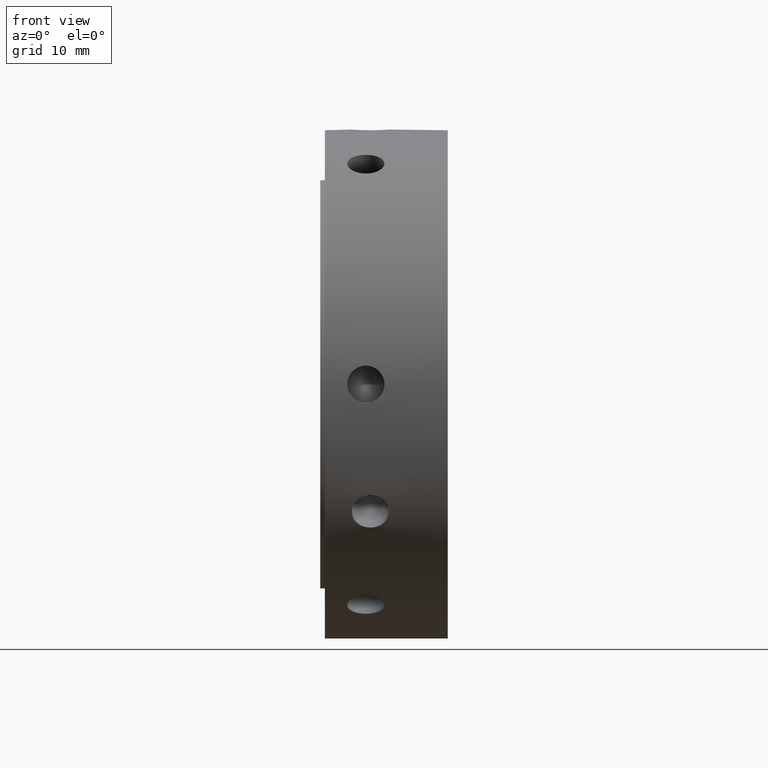
[diagram: clean part render]
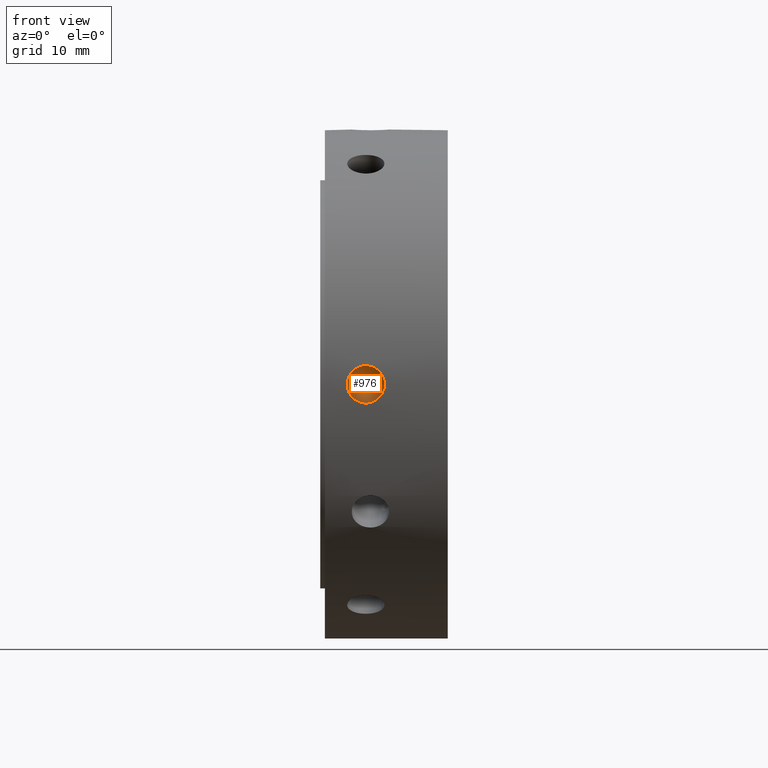
[diagram: same view with one face highlighted and labeled with its STEP entity id]
A machine part, front view. The second image highlights one B-rep face of the part: STEP entity #976.
In plain terms, the highlighted conical surface has half-angle 59 deg.
Its self-contained STEP definition (entity closure, byte-faithful):
#960=CARTESIAN_POINT('',(4.999999999999995,-23.384117865496748,2.220446E-015));
#961=DIRECTION('',(0.0,-1.0,2.775558E-016));
#962=DIRECTION('',(1.0,0.0,0.0));
#963=AXIS2_PLACEMENT_3D('',#960,#961,#962);
#964=CONICAL_SURFACE('',#963,1.025,59.000000000000007);
#965=CARTESIAN_POINT('',(7.049999999999994,-24.0,2.220446E-015));
#966=VERTEX_POINT('',#965);
#967=CARTESIAN_POINT('',(4.999999999999995,-24.0,2.220446E-015));
#968=DIRECTION('',(0.0,-1.0,0.0));
#969=DIRECTION('',(1.0,0.0,0.0));
#970=AXIS2_PLACEMENT_3D('',#967,#968,#969);
#971=CIRCLE('',#970,2.05);
#972=EDGE_CURVE('',#966,#966,#971,.T.);
#973=ORIENTED_EDGE('',*,*,#972,.T.);
#974=EDGE_LOOP('',(#973));
#975=FACE_OUTER_BOUND('',#974,.T.);
#976=ADVANCED_FACE('',(#975),#964,.F.);